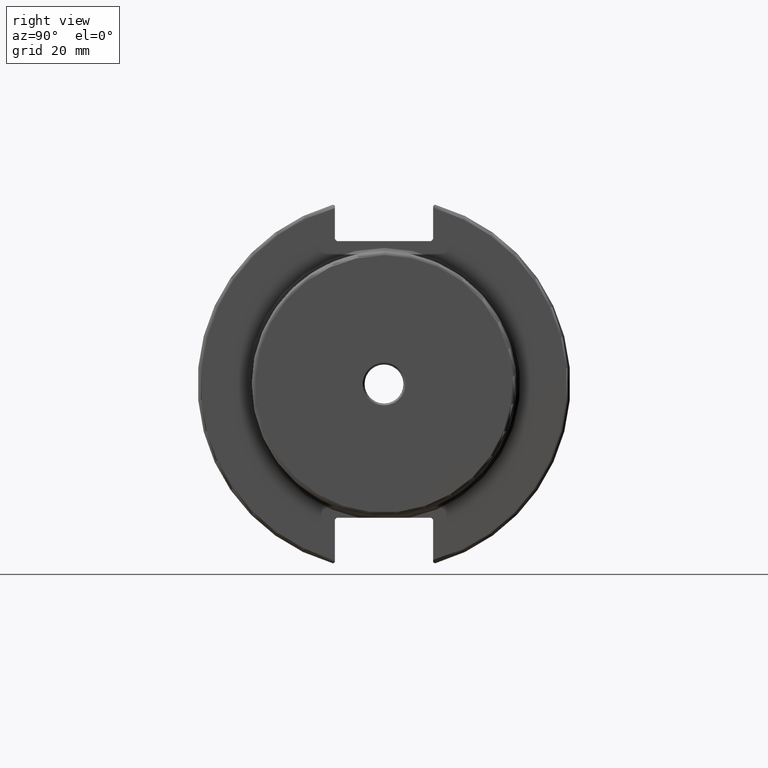
[diagram: clean part render]
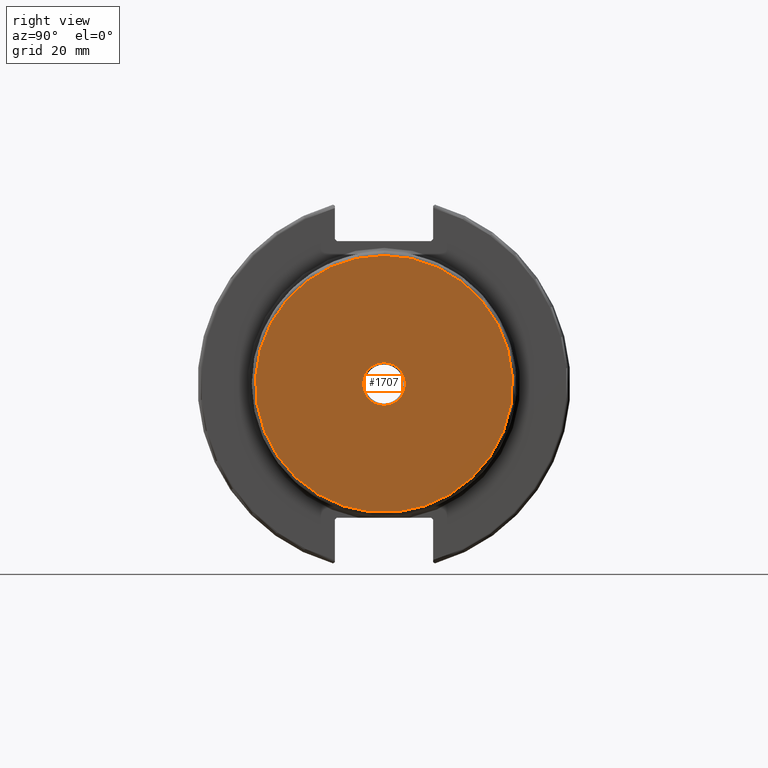
[diagram: same view with one face highlighted and labeled with its STEP entity id]
A machine part, right view. The second image highlights one B-rep face of the part: STEP entity #1707.
In plain terms, the highlighted planar face has unit normal (1, 0, 0).
Its self-contained STEP definition (entity closure, byte-faithful):
#141=FACE_BOUND('',#295,.T.);
#152=PLANE('',#1832);
#194=FACE_OUTER_BOUND('',#294,.T.);
#294=EDGE_LOOP('',(#1162));
#295=EDGE_LOOP('',(#1163));
#648=CIRCLE('',#1830,5.65);
#650=CIRCLE('',#1833,33.925);
#715=VERTEX_POINT('',#2408);
#717=VERTEX_POINT('',#2414);
#890=EDGE_CURVE('',#715,#715,#648,.T.);
#893=EDGE_CURVE('',#717,#717,#650,.T.);
#1162=ORIENTED_EDGE('',*,*,#893,.F.);
#1163=ORIENTED_EDGE('',*,*,#890,.F.);
#1707=ADVANCED_FACE('',(#194,#141),#152,.T.);
#1830=AXIS2_PLACEMENT_3D('',#2409,#1984,#1985);
#1832=AXIS2_PLACEMENT_3D('',#2413,#1989,#1990);
#1833=AXIS2_PLACEMENT_3D('',#2415,#1991,#1992);
#1984=DIRECTION('center_axis',(1.,0.,0.));
#1985=DIRECTION('ref_axis',(0.,0.,1.));
#1989=DIRECTION('center_axis',(1.,0.,0.));
#1990=DIRECTION('ref_axis',(0.,0.,-1.));
#1991=DIRECTION('center_axis',(-1.,0.,0.));
#1992=DIRECTION('ref_axis',(0.,-1.,1.83697019872103E-16));
#2408=CARTESIAN_POINT('',(35.05,6.91925441518255E-16,-5.65));
#2409=CARTESIAN_POINT('Origin',(35.05,0.,0.));
#2413=CARTESIAN_POINT('Origin',(35.05,-1.33226762955019E-14,0.));
#2414=CARTESIAN_POINT('',(35.05,-4.15461426610739E-15,33.925));
#2415=CARTESIAN_POINT('Origin',(35.05,0.,0.));